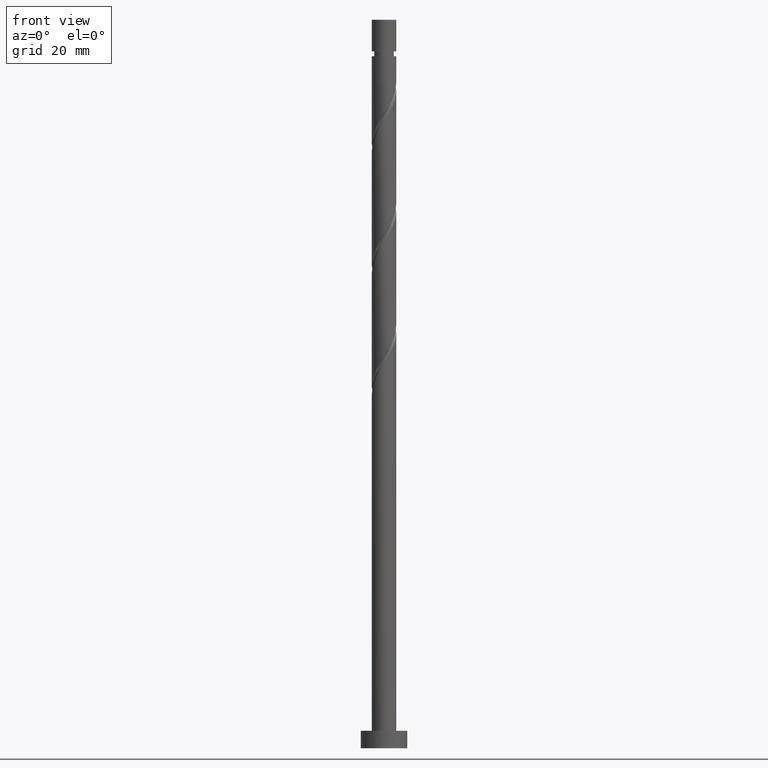
[diagram: clean part render]
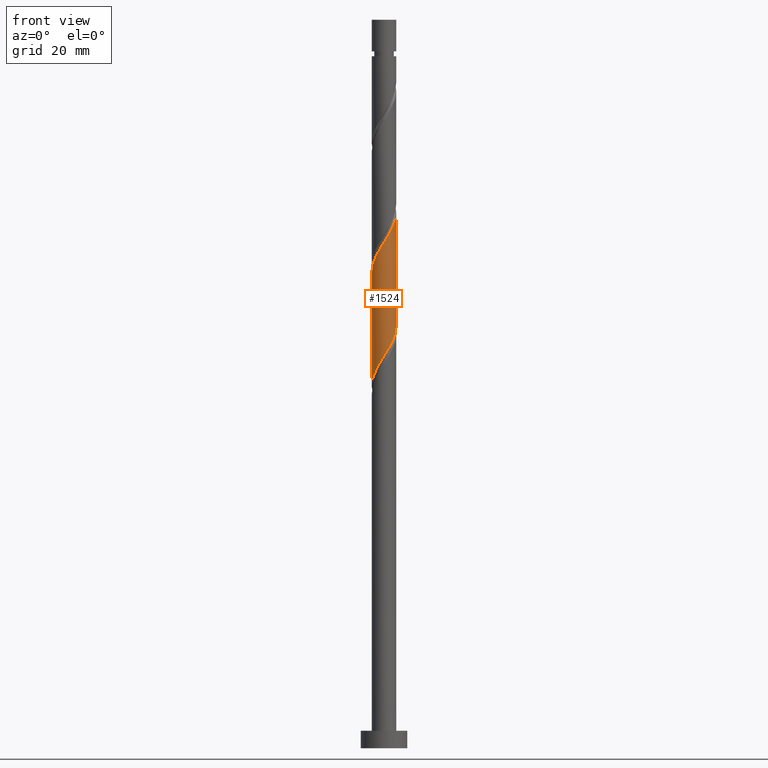
[diagram: same view with one face highlighted and labeled with its STEP entity id]
A machine part, front view. The second image highlights one B-rep face of the part: STEP entity #1524.
In plain terms, the highlighted cylindrical surface (edge-blend (fillet) strip) has radius 2.1 mm, axis along (-0, -0, -1).
Its self-contained STEP definition (entity closure, byte-faithful):
#42 = CARTESIAN_POINT ( 'NONE',  ( 0.8715781159782007848, -1.910589329957615323, 68.73421281029202135 ) ) ;
#47 = CARTESIAN_POINT ( 'NONE',  ( -1.419324618889670209, -1.547745982457620739, 84.35921281029200713 ) ) ;
#60 = CARTESIAN_POINT ( 'NONE',  ( 1.991811978090447299, -0.7438499017726769580, 71.33837947695867854 ) ) ;
#63 = VERTEX_POINT ( 'NONE', #326 ) ;
#77 = CARTESIAN_POINT ( 'NONE',  ( 0.000000000000000000, 0.000000000000000000, 125.0000000000000000 ) ) ;
#114 = VERTEX_POINT ( 'NONE', #714 ) ;
#118 =( BOUNDED_CURVE ( )  B_SPLINE_CURVE ( 2, ( #1496, #1491, #292, #783, #667, #1142, #47, #537, #909, #203, #939, #1066, #1421, #1404, #924, #808, #792, #1412, #1171, #1152, #310, #1043, #800 ),
 .UNSPECIFIED., .F., .T. ) 
 B_SPLINE_CURVE_WITH_KNOTS ( ( 3, 2, 2, 2, 2, 2, 2, 2, 2, 2, 2, 3 ),
 ( 0.3045322023138551382, 0.3125000000000000000, 0.3249999999999999556, 0.3375000000000000222, 0.3499999999999999778, 0.3625000000000000444, 0.3750000000000000000, 0.3874999999999999556, 0.4000000000000000222, 0.4124999999999999778, 0.4250000000000000444, 0.4295322023138551382 ),
 .UNSPECIFIED. ) 
 CURVE ( )  GEOMETRIC_REPRESENTATION_ITEM ( )  RATIONAL_B_SPLINE_CURVE ( ( 0.9039174447099407317, 0.9019565955404699187, 0.9090909090909184975, 0.8978984914501344505, 0.9090909090909184975, 0.8978984914501344505, 0.9090909090909184975, 0.8978984914501344505, 0.9090909090909184975, 0.8978984914501344505, 0.9090909090909184975, 0.8978984914501344505, 0.9090909090909184975, 0.8978984914501344505, 0.9090909090909184975, 0.8978984914501344505, 0.9090909090909184975, 0.8978984914501344505, 0.9090909090909184975, 0.8978984914501344505, 0.9090909090909184975, 0.9050328050005829184, 0.9039174447099407317 ) ) 
 REPRESENTATION_ITEM ( '' )  );
#188 = CYLINDRICAL_SURFACE ( 'NONE', #956, 2.100000000000000089 ) ;
#199 = CARTESIAN_POINT ( 'NONE',  ( -1.322947047055942793, -1.664463500085766823, 65.08837947695870696 ) ) ;
#203 = CARTESIAN_POINT ( 'NONE',  ( -0.5689704942628341922, -2.048633742055939955, 85.92171281029199292 ) ) ;
#205 = CARTESIAN_POINT ( 'NONE',  ( -0.4178947235847811914, -2.057999999999999829, 66.65087947695870696 ) ) ;
#232 = DIRECTION ( 'NONE',  ( -0.000000000000000000, -0.000000000000000000, -1.000000000000000000 ) ) ;
#275 = ORIENTED_EDGE ( 'NONE', *, *, #1261, .T. ) ;
#292 = CARTESIAN_POINT ( 'NONE',  ( -2.058000000000002938, -0.4178947235847811914, 82.27587947695870696 ) ) ;
#304 = CARTESIAN_POINT ( 'NONE',  ( 2.100000000000000089, 2.608799884277812170E-15, 72.52401525176230734 ) ) ;
#310 = CARTESIAN_POINT ( 'NONE',  ( 2.086410881982748045, -0.2385154744329748555, 91.65087947695866433 ) ) ;
#317 = VERTEX_POINT ( 'NONE', #826 ) ;
#326 = CARTESIAN_POINT ( 'NONE',  ( 2.100000000000003197, 2.114027492432004742E-15, 92.02774370215507815 ) ) ;
#360 = EDGE_CURVE ( 'NONE', #63, #317, #949, .T. ) ;
#428 = DIRECTION ( 'NONE',  ( -0.000000000000000000, -0.000000000000000000, -1.000000000000000000 ) ) ;
#444 = VECTOR ( 'NONE', #719, 1000.000000000000000 ) ;
#527 = CARTESIAN_POINT ( 'NONE',  ( 2.057999999999999829, -0.4178947235847813024, 71.85921281029202135 ) ) ;
#537 = CARTESIAN_POINT ( 'NONE',  ( -1.174185737693570708, -1.772544917859297131, 84.88004614362537836 ) ) ;
#561 = CARTESIAN_POINT ( 'NONE',  ( -0.7438499017726769580, -1.991811978090447299, 66.13004614362537836 ) ) ;
#606 = VERTEX_POINT ( 'NONE', #1427 ) ;
#645 = CARTESIAN_POINT ( 'NONE',  ( 1.664463500085766823, -1.322947047055943237, 70.29671281029202135 ) ) ;
#661 = CARTESIAN_POINT ( 'NONE',  ( 1.419324618889667766, -1.547745982457618963, 69.77587947695867854 ) ) ;
#667 = CARTESIAN_POINT ( 'NONE',  ( -1.828137739088110614, -1.033398474414310764, 83.31754614362532152 ) ) ;
#697 = CARTESIAN_POINT ( 'NONE',  ( -1.547745982457618963, -1.419324618889667766, 64.56754614362534994 ) ) ;
#714 = CARTESIAN_POINT ( 'NONE',  ( -2.100000000000000089, -2.863682631592311736E-15, 62.10734858509563594 ) ) ;
#719 = DIRECTION ( 'NONE',  ( -0.000000000000000000, -0.000000000000000000, -1.000000000000000000 ) ) ;
#783 = CARTESIAN_POINT ( 'NONE',  ( -1.991811978090451074, -0.7438499017726774021, 82.79671281029203556 ) ) ;
#792 = CARTESIAN_POINT ( 'NONE',  ( 1.547745982457620739, -1.419324618889670209, 89.56754614362534994 ) ) ;
#800 = CARTESIAN_POINT ( 'NONE',  ( 2.100000000000003197, 2.114027492432004742E-15, 92.02774370215507815 ) ) ;
#802 = CARTESIAN_POINT ( 'NONE',  ( -1.772544917859294467, -1.174185737693568932, 64.04671281029203556 ) ) ;
#808 = CARTESIAN_POINT ( 'NONE',  ( 1.322947047055944347, -1.664463500085770375, 89.04671281029203556 ) ) ;
#810 = CARTESIAN_POINT ( 'NONE',  ( -2.048633742055936846, -0.5689704942628327489, 63.00504614362537126 ) ) ;
#819 = CARTESIAN_POINT ( 'NONE',  ( -1.033398474414309876, -1.828137739088107505, 65.60921281029203556 ) ) ;
#820 = EDGE_LOOP ( 'NONE', ( #1185, #827, #275, #1124 ) ) ;
#826 = CARTESIAN_POINT ( 'NONE',  ( 2.100000000000000089, 2.608799884277812564E-15, 72.52401525176230734 ) ) ;
#827 = ORIENTED_EDGE ( 'NONE', *, *, #1463, .F. ) ;
#836 = CARTESIAN_POINT ( 'NONE',  ( 2.100000000000000089, 2.571758278209441464E-16, 125.0000000000000000 ) ) ;
#844 = LINE ( 'NONE', #1327, #1315 ) ;
#909 = CARTESIAN_POINT ( 'NONE',  ( -0.8715781159782026721, -1.910589329957617988, 85.40087947695867854 ) ) ;
#924 = CARTESIAN_POINT ( 'NONE',  ( 1.033398474414310542, -1.828137739088110614, 88.52587947695867854 ) ) ;
#926 = CARTESIAN_POINT ( 'NONE',  ( -2.099999999999999645, -0.1196448486375130127, 62.29685967430290816 ) ) ;
#934 = CARTESIAN_POINT ( 'NONE',  ( 0.2385154744329734677, -2.086410881982744492, 67.69254614362536415 ) ) ;
#939 = CARTESIAN_POINT ( 'NONE',  ( -0.2385154744329747722, -2.086410881982748045, 86.44254614362534994 ) ) ;
#949 = LINE ( 'NONE', #836, #444 ) ;
#956 = AXIS2_PLACEMENT_3D ( 'NONE', #77, #428, #1547 ) ;
#1005 = CARTESIAN_POINT ( 'NONE',  ( 0.5689704942628324158, -2.048633742055936846, 68.21337947695870696 ) ) ;
#1008 = EDGE_CURVE ( 'NONE', #317, #114, #1376, .T. ) ;
#1035 = CARTESIAN_POINT ( 'NONE',  ( 1.828137739088107505, -1.033398474414310098, 70.81754614362536415 ) ) ;
#1043 = CARTESIAN_POINT ( 'NONE',  ( 2.100000000000003197, -0.1196448486375111669, 91.83823261294782014 ) ) ;
#1046 = CARTESIAN_POINT ( 'NONE',  ( -2.086410881982744492, -0.2385154744329737175, 62.48421281029202845 ) ) ;
#1066 = CARTESIAN_POINT ( 'NONE',  ( 0.09193954539688480032, -2.124188021909555690, 86.96337947695869275 ) ) ;
#1124 = ORIENTED_EDGE ( 'NONE', *, *, #1008, .F. ) ;
#1132 = CARTESIAN_POINT ( 'NONE',  ( 2.100000000000000977, -0.2110579412044309155, 72.18971067635447980 ) ) ;
#1138 = CARTESIAN_POINT ( 'NONE',  ( 1.174185737693568932, -1.772544917859294689, 69.25504614362536415 ) ) ;
#1142 = CARTESIAN_POINT ( 'NONE',  ( -1.664463500085770375, -1.322947047055944791, 83.83837947695869275 ) ) ;
#1152 = CARTESIAN_POINT ( 'NONE',  ( 2.048633742055939955, -0.5689704942628341922, 91.13004614362533573 ) ) ;
#1171 = CARTESIAN_POINT ( 'NONE',  ( 1.910589329957617988, -0.8715781159782026721, 90.60921281029200713 ) ) ;
#1185 = ORIENTED_EDGE ( 'NONE', *, *, #360, .F. ) ;
#1261 = EDGE_CURVE ( 'NONE', #606, #114, #844, .T. ) ;
#1287 = CARTESIAN_POINT ( 'NONE',  ( -2.100000000000000089, -2.863682631592311736E-15, 62.10734858509563594 ) ) ;
#1296 = CARTESIAN_POINT ( 'NONE',  ( -1.910589329957615323, -0.8715781159782007848, 63.52587947695868564 ) ) ;
#1310 = FACE_OUTER_BOUND ( 'NONE', #820, .T. ) ;
#1315 = VECTOR ( 'NONE', #232, 1000.000000000000000 ) ;
#1327 = CARTESIAN_POINT ( 'NONE',  ( -2.100000000000000089, 0.000000000000000000, 125.0000000000000000 ) ) ;
#1376 =( BOUNDED_CURVE ( )  B_SPLINE_CURVE ( 2, ( #304, #1132, #527, #60, #1035, #645, #661, #1138, #42, #1005, #934, #1423, #205, #561, #819, #199, #697, #802, #1296, #810, #1046, #926, #1287 ),
 .UNSPECIFIED., .F., .T. ) 
 B_SPLINE_CURVE_WITH_KNOTS ( ( 3, 2, 2, 2, 2, 2, 2, 2, 2, 2, 2, 3 ),
 ( 0.8045322023138550271, 0.8125000000000000000, 0.8249999999999999556, 0.8375000000000000222, 0.8499999999999999778, 0.8625000000000000444, 0.8750000000000000000, 0.8874999999999999556, 0.9000000000000000222, 0.9124999999999999778, 0.9250000000000000444, 0.9295322023138550271 ),
 .UNSPECIFIED. ) 
 CURVE ( )  GEOMETRIC_REPRESENTATION_ITEM ( )  RATIONAL_B_SPLINE_CURVE ( ( 0.9039174447099341814, 0.9019565955404631463, 0.9090909090909118362, 0.8978984914501279002, 0.9090909090909118362, 0.8978984914501279002, 0.9090909090909118362, 0.8978984914501279002, 0.9090909090909118362, 0.8978984914501279002, 0.9090909090909118362, 0.8978984914501279002, 0.9090909090909118362, 0.8978984914501279002, 0.9090909090909118362, 0.8978984914501279002, 0.9090909090909118362, 0.8978984914501279002, 0.9090909090909118362, 0.8978984914501279002, 0.9090909090909118362, 0.9050328050005764791, 0.9039174447099341814 ) ) 
 REPRESENTATION_ITEM ( '' )  );
#1404 = CARTESIAN_POINT ( 'NONE',  ( 0.7438499017726772911, -1.991811978090451074, 88.00504614362534994 ) ) ;
#1412 = CARTESIAN_POINT ( 'NONE',  ( 1.772544917859297131, -1.174185737693570930, 90.08837947695872117 ) ) ;
#1421 = CARTESIAN_POINT ( 'NONE',  ( 0.4178947235847810249, -2.058000000000002938, 87.48421281029199292 ) ) ;
#1423 = CARTESIAN_POINT ( 'NONE',  ( -0.09193954539688566074, -2.124188021909552582, 67.17171281029202135 ) ) ;
#1427 = CARTESIAN_POINT ( 'NONE',  ( -2.100000000000003197, -2.413889548096119256E-15, 81.61107703548840675 ) ) ;
#1463 = EDGE_CURVE ( 'NONE', #606, #63, #118, .T. ) ;
#1491 = CARTESIAN_POINT ( 'NONE',  ( -2.100000000000003642, -0.2110579412044332748, 81.94538161089627692 ) ) ;
#1496 = CARTESIAN_POINT ( 'NONE',  ( -2.100000000000003197, -2.413889548096119256E-15, 81.61107703548840675 ) ) ;
#1524 = ADVANCED_FACE ( 'NONE', ( #1310 ), #188, .T. ) ;
#1547 = DIRECTION ( 'NONE',  ( -1.000000000000000000, 0.000000000000000000, 0.000000000000000000 ) ) ;